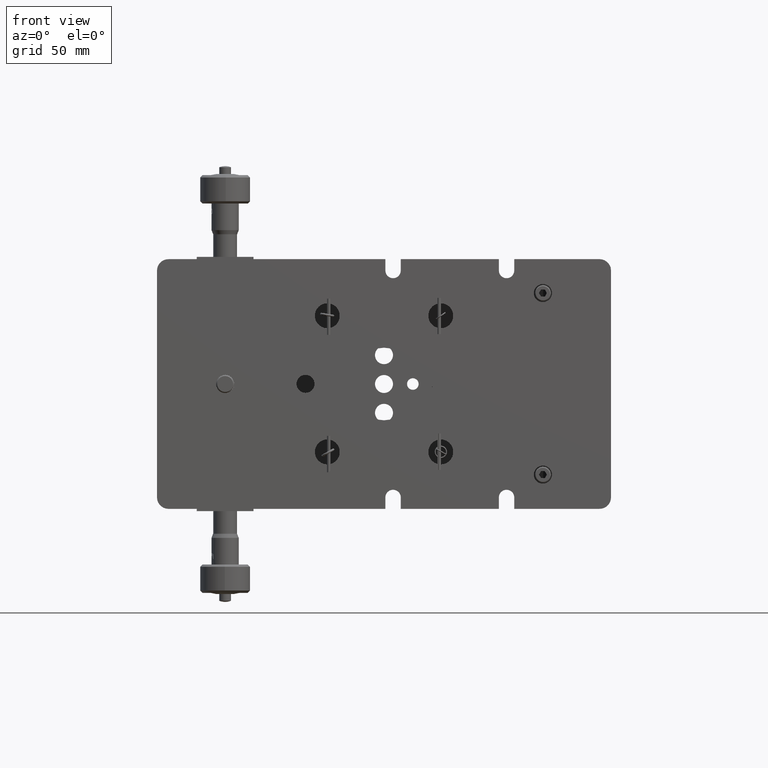
[diagram: clean part render]
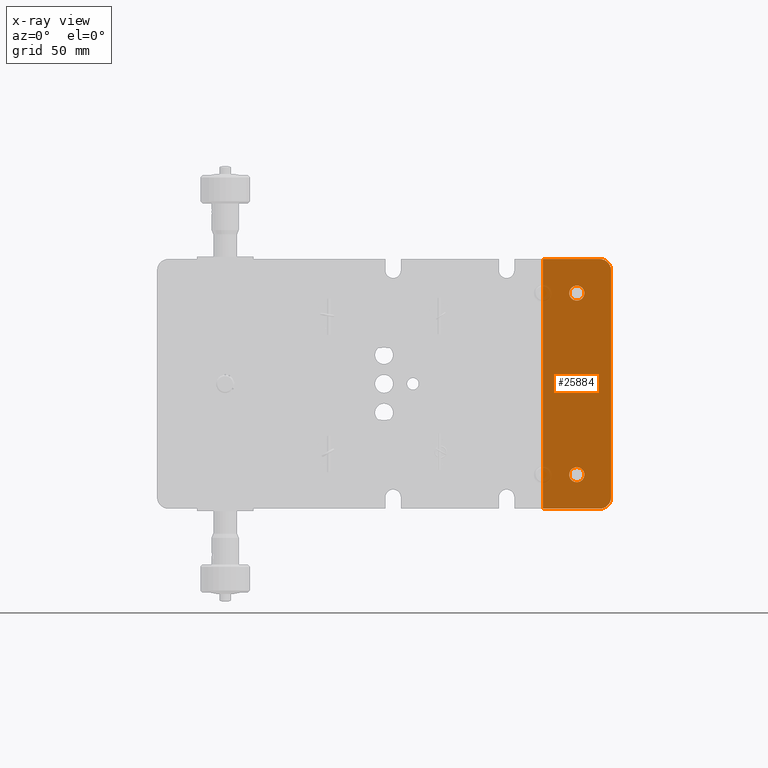
[diagram: x-ray — body ghosted, one internal face saturated and labeled with its STEP entity id]
A machine part, front view, then the same camera in x-ray: the body is ghosted and one INTERNAL B-rep face — a face not visible from any outside direction — is saturated and labeled: STEP entity #25884.
In plain terms, the highlighted planar face has unit normal (0, -1, 0).
Its self-contained STEP definition (entity closure, byte-faithful):
#20 = ORIENTED_EDGE ( 'NONE', *, *, #25648, .T. ) ;
#803 = DIRECTION ( 'NONE',  ( -1.000000000000000000, 0.000000000000000000, 2.312964634635742957E-16 ) ) ;
#1109 = DIRECTION ( 'NONE',  ( 0.000000000000000000, -1.000000000000000000, 0.000000000000000000 ) ) ;
#1223 = AXIS2_PLACEMENT_3D ( 'NONE', #34199, #14444, #45988 ) ;
#2558 = EDGE_CURVE ( 'NONE', #47905, #43620, #40538, .T. ) ;
#2594 = DIRECTION ( 'NONE',  ( 0.000000000000000000, 0.000000000000000000, -1.000000000000000000 ) ) ;
#2646 = DIRECTION ( 'NONE',  ( 0.000000000000000000, -1.000000000000000000, 0.000000000000000000 ) ) ;
#2815 = EDGE_CURVE ( 'NONE', #28738, #14605, #4341, .T. ) ;
#4341 = LINE ( 'NONE', #23583, #31110 ) ;
#6574 = DIRECTION ( 'NONE',  ( -0.000000000000000000, 1.000000000000000000, -0.000000000000000000 ) ) ;
#6663 = DIRECTION ( 'NONE',  ( 0.000000000000000000, 0.000000000000000000, -1.000000000000000000 ) ) ;
#6707 = CIRCLE ( 'NONE', #18982, 3.299999999999997158 ) ;
#7992 = EDGE_CURVE ( 'NONE', #19357, #49251, #36447, .T. ) ;
#8551 = FACE_BOUND ( 'NONE', #23335, .T. ) ;
#8900 = CARTESIAN_POINT ( 'NONE',  ( 84.89407885232854767, 43.89999999999966462, 40.00000000000000000 ) ) ;
#8961 = ORIENTED_EDGE ( 'NONE', *, *, #7992, .T. ) ;
#10658 = CIRCLE ( 'NONE', #28688, 3.299999999999997158 ) ;
#10757 = DIRECTION ( 'NONE',  ( -0.000000000000000000, 1.000000000000000000, -0.000000000000000000 ) ) ;
#11038 = EDGE_LOOP ( 'NONE', ( #40278, #26414, #33840, #20, #50556, #14386 ) ) ;
#11641 = PLANE ( 'NONE',  #27174 ) ;
#12654 = CARTESIAN_POINT ( 'NONE',  ( 100.0000000000000142, 43.89999999999966462, 55.00000000000000000 ) ) ;
#12845 = CIRCLE ( 'NONE', #17640, 4.999999999999997335 ) ;
#13825 = CARTESIAN_POINT ( 'NONE',  ( 84.94703942616428094, 43.89999999999966462, -43.29957499954448252 ) ) ;
#13893 = EDGE_CURVE ( 'NONE', #43620, #28738, #16953, .T. ) ;
#14011 = CARTESIAN_POINT ( 'NONE',  ( 84.94703942616428094, 43.89999999999966462, -36.70042500045551748 ) ) ;
#14386 = ORIENTED_EDGE ( 'NONE', *, *, #13893, .T. ) ;
#14444 = DIRECTION ( 'NONE',  ( 0.000000000000000000, -1.000000000000000000, 0.000000000000000000 ) ) ;
#14605 = VERTEX_POINT ( 'NONE', #45786 ) ;
#15399 = DIRECTION ( 'NONE',  ( 0.000000000000000000, 0.000000000000000000, -1.000000000000000000 ) ) ;
#15875 = CARTESIAN_POINT ( 'NONE',  ( 70.00000000000001421, 43.89999999999966462, -54.99999999999999289 ) ) ;
#16953 = CIRCLE ( 'NONE', #42343, 4.999999999999997335 ) ;
#17640 = AXIS2_PLACEMENT_3D ( 'NONE', #37613, #6574, #34277 ) ;
#18982 = AXIS2_PLACEMENT_3D ( 'NONE', #8900, #38999, #15399 ) ;
#19357 = VERTEX_POINT ( 'NONE', #14011 ) ;
#19901 = VERTEX_POINT ( 'NONE', #41261 ) ;
#20113 = DIRECTION ( 'NONE',  ( 0.000000000000000000, -0.000000000000000000, -1.000000000000000000 ) ) ;
#20412 = VERTEX_POINT ( 'NONE', #30653 ) ;
#20558 = LINE ( 'NONE', #39787, #38256 ) ;
#21152 = EDGE_CURVE ( 'NONE', #49251, #19357, #47516, .T. ) ;
#21772 = VERTEX_POINT ( 'NONE', #48271 ) ;
#21809 = CARTESIAN_POINT ( 'NONE',  ( 100.0000000000000142, 43.89999999999966462, 55.00000000000000000 ) ) ;
#22344 = DIRECTION ( 'NONE',  ( 0.000000000000000000, -1.000000000000000000, 0.000000000000000000 ) ) ;
#22907 = DIRECTION ( 'NONE',  ( 0.000000000000000000, 0.000000000000000000, -1.000000000000000000 ) ) ;
#23335 = EDGE_LOOP ( 'NONE', ( #8961, #28874 ) ) ;
#23488 = ORIENTED_EDGE ( 'NONE', *, *, #24199, .T. ) ;
#23583 = CARTESIAN_POINT ( 'NONE',  ( 100.0000000000000142, 43.89999999999966462, -55.00000000000000000 ) ) ;
#24089 = DIRECTION ( 'NONE',  ( -0.000000000000000000, -0.000000000000000000, -1.000000000000000000 ) ) ;
#24199 = EDGE_CURVE ( 'NONE', #20412, #21772, #10658, .T. ) ;
#24588 = CARTESIAN_POINT ( 'NONE',  ( 70.00000000000001421, 43.89999999999966462, 55.00000000000000000 ) ) ;
#25179 = EDGE_LOOP ( 'NONE', ( #23488, #42692 ) ) ;
#25271 = CARTESIAN_POINT ( 'NONE',  ( 95.00000000000001421, 43.89999999999966462, 55.00000000000000000 ) ) ;
#25648 = EDGE_CURVE ( 'NONE', #36161, #47905, #27164, .T. ) ;
#25884 = ADVANCED_FACE ( 'NONE', ( #32160, #8551, #42938 ), #11641, .F. ) ;
#26414 = ORIENTED_EDGE ( 'NONE', *, *, #39034, .T. ) ;
#26441 = CARTESIAN_POINT ( 'NONE',  ( 85.00000000000001421, 43.89999999999966462, 40.00000000000000000 ) ) ;
#27164 = LINE ( 'NONE', #15875, #36192 ) ;
#27174 = AXIS2_PLACEMENT_3D ( 'NONE', #12654, #1109, #20113 ) ;
#28688 = AXIS2_PLACEMENT_3D ( 'NONE', #26441, #22344, #2594 ) ;
#28738 = VERTEX_POINT ( 'NONE', #41242 ) ;
#28874 = ORIENTED_EDGE ( 'NONE', *, *, #21152, .T. ) ;
#29001 = DIRECTION ( 'NONE',  ( 1.000000000000000000, -0.000000000000000000, -0.000000000000000000 ) ) ;
#30113 = CARTESIAN_POINT ( 'NONE',  ( 70.00000000000001421, 43.89999999999966462, -54.99999999999999289 ) ) ;
#30596 = CARTESIAN_POINT ( 'NONE',  ( 85.00000000000001421, 43.89999999999966462, -40.00000000000000000 ) ) ;
#30653 = CARTESIAN_POINT ( 'NONE',  ( 84.94703942616428094, 43.89999999999966462, 36.70042500045551748 ) ) ;
#31110 = VECTOR ( 'NONE', #24089, 1000.000000000000000 ) ;
#32160 = FACE_BOUND ( 'NONE', #25179, .T. ) ;
#33840 = ORIENTED_EDGE ( 'NONE', *, *, #35380, .T. ) ;
#34199 = CARTESIAN_POINT ( 'NONE',  ( 84.89407885232854767, 43.89999999999966462, -40.00000000000000000 ) ) ;
#34277 = DIRECTION ( 'NONE',  ( 0.000000000000000000, 0.000000000000000000, -1.000000000000000000 ) ) ;
#34367 = CARTESIAN_POINT ( 'NONE',  ( 95.00000000000001421, 43.89999999999966462, 50.00000000000000000 ) ) ;
#35380 = EDGE_CURVE ( 'NONE', #19901, #36161, #20558, .T. ) ;
#36161 = VERTEX_POINT ( 'NONE', #30113 ) ;
#36192 = VECTOR ( 'NONE', #43062, 1000.000000000000000 ) ;
#36447 = CIRCLE ( 'NONE', #1223, 3.299999999999997158 ) ;
#37613 = CARTESIAN_POINT ( 'NONE',  ( 95.00000000000001421, 43.89999999999966462, -50.00000000000000000 ) ) ;
#38256 = VECTOR ( 'NONE', #803, 1000.000000000000000 ) ;
#38999 = DIRECTION ( 'NONE',  ( 0.000000000000000000, -1.000000000000000000, 0.000000000000000000 ) ) ;
#39034 = EDGE_CURVE ( 'NONE', #14605, #19901, #12845, .T. ) ;
#39787 = CARTESIAN_POINT ( 'NONE',  ( 100.0000000000000142, 43.89999999999966462, -55.00000000000000000 ) ) ;
#40278 = ORIENTED_EDGE ( 'NONE', *, *, #2815, .T. ) ;
#40538 = LINE ( 'NONE', #21809, #48270 ) ;
#40961 = AXIS2_PLACEMENT_3D ( 'NONE', #30596, #2646, #22907 ) ;
#41242 = CARTESIAN_POINT ( 'NONE',  ( 100.0000000000000142, 43.89999999999966462, 50.00000000000000711 ) ) ;
#41261 = CARTESIAN_POINT ( 'NONE',  ( 95.00000000000001421, 43.89999999999966462, -55.00000000000000000 ) ) ;
#42343 = AXIS2_PLACEMENT_3D ( 'NONE', #34367, #10757, #6663 ) ;
#42692 = ORIENTED_EDGE ( 'NONE', *, *, #50345, .T. ) ;
#42938 = FACE_OUTER_BOUND ( 'NONE', #11038, .T. ) ;
#43062 = DIRECTION ( 'NONE',  ( 0.000000000000000000, 0.000000000000000000, 1.000000000000000000 ) ) ;
#43620 = VERTEX_POINT ( 'NONE', #25271 ) ;
#45786 = CARTESIAN_POINT ( 'NONE',  ( 100.0000000000000142, 43.89999999999966462, -50.00000000000000000 ) ) ;
#45988 = DIRECTION ( 'NONE',  ( 0.000000000000000000, 0.000000000000000000, -1.000000000000000000 ) ) ;
#47516 = CIRCLE ( 'NONE', #40961, 3.299999999999997158 ) ;
#47905 = VERTEX_POINT ( 'NONE', #24588 ) ;
#48270 = VECTOR ( 'NONE', #29001, 1000.000000000000000 ) ;
#48271 = CARTESIAN_POINT ( 'NONE',  ( 84.94703942616428094, 43.89999999999966462, 43.29957499954448252 ) ) ;
#49251 = VERTEX_POINT ( 'NONE', #13825 ) ;
#50345 = EDGE_CURVE ( 'NONE', #21772, #20412, #6707, .T. ) ;
#50556 = ORIENTED_EDGE ( 'NONE', *, *, #2558, .T. ) ;